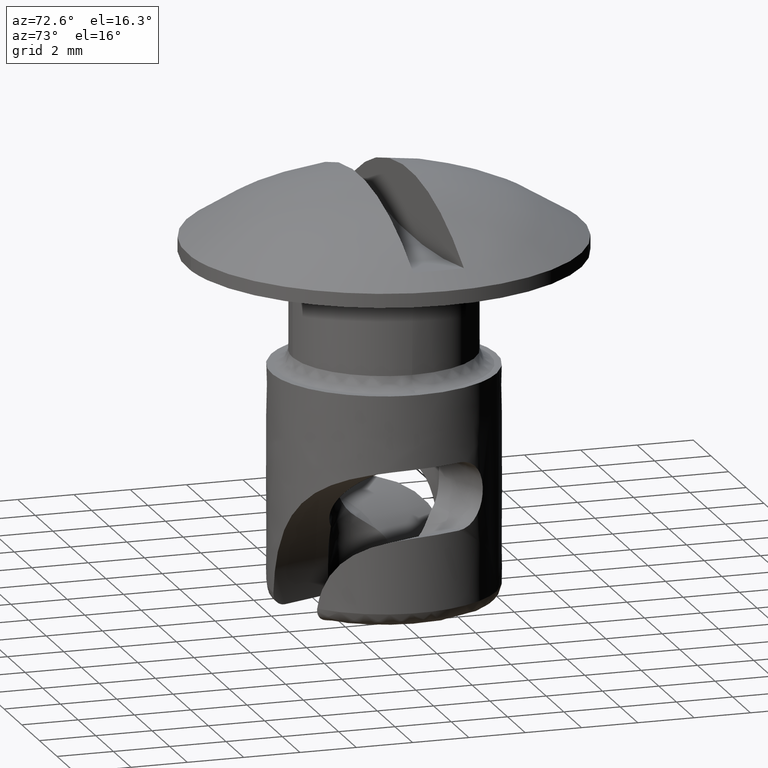
[diagram: clean part render]
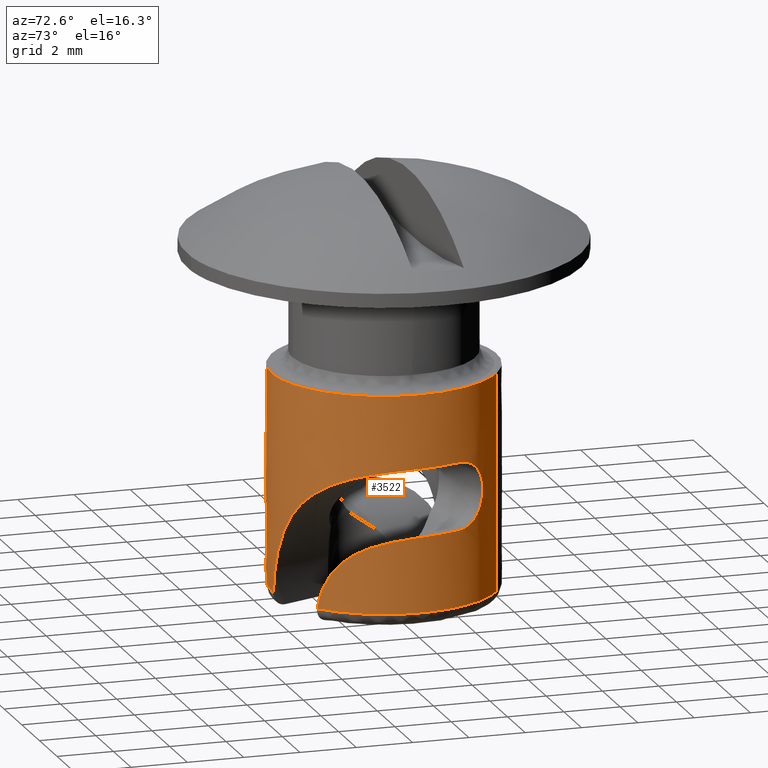
[diagram: same view with one face highlighted and labeled with its STEP entity id]
A machine part, auxiliary view. The second image highlights one B-rep face of the part: STEP entity #3522.
In plain terms, the highlighted face is a freeform B-spline surface patch.
Its self-contained STEP definition (entity closure, byte-faithful):
#891=CARTESIAN_POINT('',(4.0,0.0,-3.999992000000230));
#892=VERTEX_POINT('',#891);
#893=CARTESIAN_POINT('',(2.259197510015699,3.300912996541445,-3.999992000000230));
#894=VERTEX_POINT('',#893);
#895=CARTESIAN_POINT('',(4.0,0.0,-3.999992000000230));
#896=CARTESIAN_POINT('',(3.999999999999908,2.109480003632687,-3.999992000000229));
#897=CARTESIAN_POINT('',(2.259197510015699,3.300912996541445,-3.999992000000230));
#905=(BOUNDED_CURVE()B_SPLINE_CURVE(2,(#895,#896,#897),.UNSPECIFIED.,.F.,.U.)B_SPLINE_CURVE_WITH_KNOTS((3,3),(0.0,0.153025893260789),.UNSPECIFIED.)CURVE()GEOMETRIC_REPRESENTATION_ITEM()RATIONAL_B_SPLINE_CURVE((1.0,0.820719014244174,0.860915092408029))REPRESENTATION_ITEM(''));
#906=EDGE_CURVE('',#892,#894,#905,.T.);
#925=CARTESIAN_POINT('',(-2.259197510500350,-3.300912996209743,-3.999992000000230));
#926=VERTEX_POINT('',#925);
#940=CARTESIAN_POINT('',(-2.259197510500349,-3.300912996209743,-3.999992000000230));
#941=CARTESIAN_POINT('',(-1.237761639769162,-3.999999999999750,-3.999992000000230));
#942=CARTESIAN_POINT('',(1.431189E-013,-3.999999999999793,-3.999992000000230));
#943=CARTESIAN_POINT('',(4.000000000000049,-3.999999999999929,-3.999992000000229));
#944=CARTESIAN_POINT('',(4.0,0.0,-3.999992000000230));
#952=(BOUNDED_CURVE()B_SPLINE_CURVE(2,(#940,#941,#942,#943,#944),.UNSPECIFIED.,.F.,.U.)B_SPLINE_CURVE_WITH_KNOTS((3,2,3),(0.653025893238444,0.750000000000000,1.0),.UNSPECIFIED.)CURVE()GEOMETRIC_REPRESENTATION_ITEM()RATIONAL_B_SPLINE_CURVE((0.860915092396290,0.886387766916194,1.0,0.707106781186548,1.0))REPRESENTATION_ITEM(''));
#953=EDGE_CURVE('',#926,#892,#952,.T.);
#1437=CARTESIAN_POINT('',(3.708735643719140,1.498425815652672,-9.000000000002999));
#1438=VERTEX_POINT('',#1437);
#2209=CARTESIAN_POINT('',(2.468781606039280,-3.147239644781140,-11.699992000000160));
#2210=VERTEX_POINT('',#2209);
#2211=CARTESIAN_POINT('',(3.708735643719140,1.498425815652672,-9.000000000002999));
#2212=CARTESIAN_POINT('',(3.810090958870764,1.247562498924028,-8.999999999999957));
#2213=CARTESIAN_POINT('',(3.884534013940236,0.990773260347813,-9.001989005608994));
#2214=CARTESIAN_POINT('',(3.957431423748060,0.597114365973021,-9.010854007396773));
#2215=CARTESIAN_POINT('',(3.975219266481579,0.464472409151723,-9.014852633452975));
#2216=CARTESIAN_POINT('',(3.991888873922462,0.263341844608409,-9.023411577499735));
#2217=CARTESIAN_POINT('',(3.995774987931119,0.195736937058385,-9.026708973333692));
#2218=CARTESIAN_POINT('',(4.000098380150635,0.061185388952167,-9.034313639172039));
#2219=CARTESIAN_POINT('',(4.000552922773697,-0.005834224472924,-9.038621180587285));
#2220=CARTESIAN_POINT('',(3.994494771487647,-0.339610273644316,-9.063199871098789));
#2221=CARTESIAN_POINT('',(3.963160964590874,-0.602465402867065,-9.092231149312392));
#2222=CARTESIAN_POINT('',(3.892244392910703,-0.924545387156607,-9.151712658925305));
#2223=CARTESIAN_POINT('',(3.876463512499087,-0.988632693985070,-9.164793391147132));
#2224=CARTESIAN_POINT('',(3.841703696563867,-1.116098864420392,-9.193729502408417));
#2225=CARTESIAN_POINT('',(3.822759539488336,-1.179300871714236,-9.209558206818848));
#2226=CARTESIAN_POINT('',(3.762135803825181,-1.365026873242742,-9.261026305331658));
#2227=CARTESIAN_POINT('',(3.716439603513255,-1.484531998927814,-9.300822789177580));
#2228=CARTESIAN_POINT('',(3.616038741455109,-1.714649352695214,-9.393747744094366));
#2229=CARTESIAN_POINT('',(3.561327725681838,-1.825262215269170,-9.446867744072126));
#2230=CARTESIAN_POINT('',(3.473709976626769,-1.984187070145876,-9.538682419504859));
#2231=CARTESIAN_POINT('',(3.443778442466752,-2.035621141561653,-9.571116458527442));
#2232=CARTESIAN_POINT('',(3.383315620142914,-2.134605070561871,-9.639214097439547));
#2233=CARTESIAN_POINT('',(3.352704786899972,-2.182299978619811,-9.674960163162739));
#2234=CARTESIAN_POINT('',(3.260219866616388,-2.320176019284354,-9.787463364765014));
#2235=CARTESIAN_POINT('',(3.197691955991925,-2.405156493261604,-9.869475532748558));
#2236=CARTESIAN_POINT('',(3.104503275320067,-2.522808418043427,-10.003835034144069));
#2237=CARTESIAN_POINT('',(3.073540876573496,-2.560387302447289,-10.050513885296370));
#2238=CARTESIAN_POINT('',(3.012145538220087,-2.632340387389571,-10.147830150644310));
#2239=CARTESIAN_POINT('',(2.982023100929452,-2.666350250954837,-10.197984765034009));
#2240=CARTESIAN_POINT('',(2.894146360982896,-2.762509471872193,-10.352250067694619));
#2241=CARTESIAN_POINT('',(2.838713494502888,-2.819012463386952,-10.460418501357660));
#2242=CARTESIAN_POINT('',(2.761690907903709,-2.893846008749099,-10.630600571960381));
#2243=CARTESIAN_POINT('',(2.737037230131217,-2.917130702887333,-10.688652361414199));
#2244=CARTESIAN_POINT('',(2.690008017475718,-2.960554205342075,-10.807433704027320));
#2245=CARTESIAN_POINT('',(2.667561133932272,-2.980754471376136,-10.868388787778670));
#2246=CARTESIAN_POINT('',(2.604753430960592,-3.036178198241653,-11.053081659258231));
#2247=CARTESIAN_POINT('',(2.568768672016634,-3.066416776179763,-11.178873449431300));
#2248=CARTESIAN_POINT('',(2.509227545560912,-3.115326862492776,-11.435575624183061));
#2249=CARTESIAN_POINT('',(2.485666534758484,-3.133994640858298,-11.566485656691439));
#2250=CARTESIAN_POINT('',(2.468781606039280,-3.147239644781140,-11.699992000000160));
#2251=B_SPLINE_CURVE_WITH_KNOTS('',3,(#2211,#2212,#2213,#2214,#2215,#2216,#2217,#2218,#2219,#2220,#2221,#2222,#2223,#2224,#2225,#2226,#2227,#2228,#2229,#2230,#2231,#2232,#2233,#2234,#2235,#2236,#2237,#2238,#2239,#2240,#2241,#2242,#2243,#2244,#2245,#2246,#2247,#2248,#2249,#2250),.UNSPECIFIED.,.F.,.U.,(4,2,2,2,2,2,2,2,2,2,2,2,2,2,2,2,2,2,2,4),(0.0,0.125000000000002,0.187500000000003,0.218750000000003,0.250000000000003,0.375000000000005,0.406250000000005,0.437500000000006,0.500000000000006,0.562500000000007,0.593750000000007,0.625000000000007,0.687500000000007,0.718750000000007,0.750000000000007,0.812500000000006,0.843750000000005,0.875000000000005,0.937500000000002,1.0),.UNSPECIFIED.);
#2252=EDGE_CURVE('',#1438,#2210,#2251,.T.);
#2937=CARTESIAN_POINT('',(3.708735643717875,1.498425815653404,-6.600000000000000));
#2938=VERTEX_POINT('',#2937);
#2939=CARTESIAN_POINT('',(3.708735643719140,1.498425815652672,-9.000000000002999));
#2940=CARTESIAN_POINT('',(3.693980332764580,1.534946507632162,-8.999999999999545));
#2941=CARTESIAN_POINT('',(3.678605449735882,1.571443497108850,-8.998060004203998));
#2942=CARTESIAN_POINT('',(3.646725625274035,1.644069625472710,-8.990184061265460));
#2943=CARTESIAN_POINT('',(3.630460214853704,1.679657963704901,-8.984312736830514));
#2944=CARTESIAN_POINT('',(3.580785661125524,1.784360679842895,-8.961115904495420));
#2945=CARTESIAN_POINT('',(3.546492992665189,1.851425869439604,-8.938261317992373));
#2946=CARTESIAN_POINT('',(3.493745136881018,1.948099713255428,-8.892742532923027));
#2947=CARTESIAN_POINT('',(3.476008292158629,1.979540920869980,-8.875716160736427));
#2948=CARTESIAN_POINT('',(3.440969522412821,2.039839368769484,-8.838640247142717));
#2949=CARTESIAN_POINT('',(3.406185018755823,2.097888119400641,-8.798390899087700));
#2950=CARTESIAN_POINT('',(3.372144950699159,2.151647418722548,-8.751882076158706));
#2951=CARTESIAN_POINT('',(3.338619872972861,2.203307860198962,-8.702189254878661));
#2952=CARTESIAN_POINT('',(3.322039984462923,2.228194726983981,-8.675607884540233));
#2953=CARTESIAN_POINT('',(3.274234720697461,2.298389129948200,-8.592494346216469));
#2954=CARTESIAN_POINT('',(3.244711567903311,2.339627016936404,-8.532392079923566));
#2955=CARTESIAN_POINT('',(3.191487183096998,2.411724963050375,-8.402758036293337));
#2956=CARTESIAN_POINT('',(3.167665745887050,2.442717719060329,-8.332510609649090));
#2957=CARTESIAN_POINT('',(3.129122526322120,2.491900549370056,-8.187930240633563));
#2958=CARTESIAN_POINT('',(3.114111099204582,2.510493086913674,-8.113106655318473));
#2959=CARTESIAN_POINT('',(3.098753066007345,2.529386349564355,-7.996907638080793));
#2960=CARTESIAN_POINT('',(3.094832176459688,2.534172527735668,-7.957324867691803));
#2961=CARTESIAN_POINT('',(3.089663145777002,2.540472051885770,-7.878589447126708));
#2962=CARTESIAN_POINT('',(3.087096383195576,2.543585588401965,-7.799927749917885));
#2963=CARTESIAN_POINT('',(3.089666338298441,2.540468136988271,-7.721410773289576));
#2964=CARTESIAN_POINT('',(3.094809839269402,2.534199774254677,-7.642966707535638));
#2965=CARTESIAN_POINT('',(3.098690236980815,2.529463423918881,-7.603621911833011));
#2966=CARTESIAN_POINT('',(3.114110045358947,2.510494814966792,-7.486793612842373));
#2967=CARTESIAN_POINT('',(3.129186956931753,2.491820083517482,-7.411773137369799));
#2968=CARTESIAN_POINT('',(3.158125759642798,2.454890276847691,-7.303302705170691));
#2969=CARTESIAN_POINT('',(3.168831734382462,2.441081575336330,-7.267827589531651));
#2970=CARTESIAN_POINT('',(3.192281513021277,2.410334532777309,-7.198260596250805));
#2971=CARTESIAN_POINT('',(3.204919492123242,2.393531891863612,-7.164503663049300));
#2972=CARTESIAN_POINT('',(3.244911173185314,2.339351822899805,-7.067166908508644));
#2973=CARTESIAN_POINT('',(3.274469571402577,2.298055152406833,-7.007052296822426));
#2974=CARTESIAN_POINT('',(3.322288534992270,2.227824275993411,-6.923982773170086));
#2975=CARTESIAN_POINT('',(3.338875886487748,2.202920023704373,-6.897411074326966));
#2976=CARTESIAN_POINT('',(3.372406018221560,2.151238356032555,-6.847751460844282));
#2977=CARTESIAN_POINT('',(3.389419155863506,2.124361892889726,-6.824526641371430));
#2978=CARTESIAN_POINT('',(3.440987162825300,2.040566100235265,-6.759571072650774));
#2979=CARTESIAN_POINT('',(3.476123070176077,1.980401778936989,-6.722456112077881));
#2980=CARTESIAN_POINT('',(3.546660964345535,1.851112856905230,-6.661602071041027));
#2981=CARTESIAN_POINT('',(3.580949678573106,1.784022479467330,-6.638797553949281));
#2982=CARTESIAN_POINT('',(3.630485784679587,1.679600300423471,-6.615680313536406));
#2983=CARTESIAN_POINT('',(3.646682940823901,1.644158857251185,-6.609836626266414));
#2984=CARTESIAN_POINT('',(3.678386688849845,1.571949803924034,-6.601983981890302));
#2985=CARTESIAN_POINT('',(3.693922479155233,1.535089700403719,-6.599999999998459));
#2986=CARTESIAN_POINT('',(3.708735643717875,1.498425815653404,-6.600000000000000));
#2987=B_SPLINE_CURVE_WITH_KNOTS('',3,(#2939,#2940,#2941,#2942,#2943,#2944,#2945,#2946,#2947,#2948,#2949,#2950,#2951,#2952,#2953,#2954,#2955,#2956,#2957,#2958,#2959,#2960,#2961,#2962,#2963,#2964,#2965,#2966,#2967,#2968,#2969,#2970,#2971,#2972,#2973,#2974,#2975,#2976,#2977,#2978,#2979,#2980,#2981,#2982,#2983,#2984,#2985,#2986),.UNSPECIFIED.,.F.,.U.,(4,2,2,2,2,1,2,2,2,2,2,2,1,2,2,2,2,2,2,2,2,2,2,2,4),(0.0,0.031249999999999,0.062499999999998,0.124999999999997,0.156249999999996,0.187499999999996,0.218749999999995,0.249999999999994,0.312499999999994,0.374999999999994,0.437499999999993,0.468749999999994,0.499999999999995,0.531249999999995,0.562499999999996,0.624999999999996,0.656249999999997,0.687499999999997,0.749999999999998,0.781249999999998,0.812499999999999,0.874999999999999,0.937499999999999,0.968750000000000,1.0),.UNSPECIFIED.);
#2988=EDGE_CURVE('',#1438,#2938,#2987,.T.);
#3117=CARTESIAN_POINT('',(2.259198873092861,3.300912063629678,-11.699992000000149));
#3118=VERTEX_POINT('',#3117);
#3132=CARTESIAN_POINT('',(2.468781606039278,-3.147239644781141,-11.699992000000160));
#3133=CARTESIAN_POINT('',(4.772995447202776,-1.339750737198720,-11.699992000000158));
#3134=CARTESIAN_POINT('',(3.745950619800007,1.402802179218420,-11.699992000000160));
#3135=CARTESIAN_POINT('',(3.302552385434745,2.586823643858704,-11.699992000000163));
#3136=CARTESIAN_POINT('',(2.259198873092861,3.300912063629680,-11.699992000000162));
#3144=(BOUNDED_CURVE()B_SPLINE_CURVE(2,(#3132,#3133,#3134,#3135,#3136),.UNSPECIFIED.,.F.,.U.)B_SPLINE_CURVE_WITH_KNOTS((3,2,3),(0.0,0.500000000000000,0.742473772088481),.UNSPECIFIED.)CURVE()GEOMETRIC_REPRESENTATION_ITEM()RATIONAL_B_SPLINE_CURVE((1.0,0.806864675671207,1.0,0.906339498772931,0.903519857658763))REPRESENTATION_ITEM(''));
#3145=EDGE_CURVE('',#2210,#3118,#3144,.T.);
#3412=CARTESIAN_POINT('',(-2.259198850649106,-3.300912078990555,-11.892492000000161));
#3413=CARTESIAN_POINT('',(1.041713228341449,-5.560110929639662,-11.892492000000159));
#3414=CARTESIAN_POINT('',(3.300912078990555,-2.259198850649106,-11.892492000000161));
#3415=CARTESIAN_POINT('',(5.560110929639662,1.041713228341449,-11.892492000000159));
#3416=CARTESIAN_POINT('',(2.259198850649106,3.300912078990555,-11.892492000000161));
#3417=CARTESIAN_POINT('',(-2.259198850649106,-3.300912078990555,-3.802679500000232));
#3418=CARTESIAN_POINT('',(1.041713228341449,-5.560110929639662,-3.802679500000232));
#3419=CARTESIAN_POINT('',(3.300912078990555,-2.259198850649106,-3.802679500000232));
#3420=CARTESIAN_POINT('',(5.560110929639662,1.041713228341449,-3.802679500000232));
#3421=CARTESIAN_POINT('',(2.259198850649106,3.300912078990555,-3.802679500000232));
#3429=(BOUNDED_SURFACE()B_SPLINE_SURFACE(2,1,((#3412,#3417),(#3413,#3418),(#3414,#3419),(#3415,#3420),(#3416,#3421)),.UNSPECIFIED.,.F.,.F.,.U.)B_SPLINE_SURFACE_WITH_KNOTS((3,2,3),(2,2),(0.0,6.627416997969519,13.254833995939039),(0.0,8.089812499999926),.UNSPECIFIED.)GEOMETRIC_REPRESENTATION_ITEM()RATIONAL_B_SPLINE_SURFACE(((1.0,1.0),(0.707106781186548,0.707106781186548),(1.0,1.0),(0.707106781186548,0.707106781186548),(1.0,1.0)))REPRESENTATION_ITEM('')SURFACE());
#3430=ORIENTED_EDGE('',*,*,#953,.F.);
#3431=CARTESIAN_POINT('',(-2.259198889442652,-3.300912052439610,-11.699992000000160));
#3432=VERTEX_POINT('',#3431);
#3433=CARTESIAN_POINT('',(-2.259198889442652,-3.300912052439610,-11.699992000000160));
#3434=CARTESIAN_POINT('',(-2.259197510500350,-3.300912996209743,-3.999992000000230));
#3435=QUASI_UNIFORM_CURVE('',1,(#3433,#3434),.UNSPECIFIED.,.F.,.U.);
#3436=EDGE_CURVE('',#3432,#926,#3435,.T.);
#3437=ORIENTED_EDGE('',*,*,#3436,.F.);
#3438=CARTESIAN_POINT('',(0.205768854712658,-3.994703891207740,-11.699992000000160));
#3439=VERTEX_POINT('',#3438);
#3440=CARTESIAN_POINT('',(-2.259198889442653,-3.300912052439611,-11.699992000000162));
#3441=CARTESIAN_POINT('',(-1.143920645850058,-4.064226957325293,-11.699992000000162));
#3442=CARTESIAN_POINT('',(0.205768854712658,-3.994703891207737,-11.699992000000160));
#3450=(BOUNDED_CURVE()B_SPLINE_CURVE(2,(#3440,#3441,#3442),.UNSPECIFIED.,.F.,.U.)B_SPLINE_CURVE_WITH_KNOTS((3,3),(0.742473770194558,1.0),.UNSPECIFIED.)CURVE()GEOMETRIC_REPRESENTATION_ITEM()RATIONAL_B_SPLINE_CURVE((0.903519857702811,0.900525176166710,1.0))REPRESENTATION_ITEM(''));
#3451=EDGE_CURVE('',#3432,#3439,#3450,.T.);
#3452=ORIENTED_EDGE('',*,*,#3451,.T.);
#3453=CARTESIAN_POINT('',(3.708735643717875,1.498425815653404,-6.600000000000000));
#3454=CARTESIAN_POINT('',(3.789816242015302,1.297744205807735,-6.599999999999972));
#3455=CARTESIAN_POINT('',(3.853610974872032,1.093263577412488,-6.600772875729547));
#3456=CARTESIAN_POINT('',(3.948059474699817,0.677029674079291,-6.604736595366663));
#3457=CARTESIAN_POINT('',(3.978711172169415,0.465275843627494,-6.607918917681143));
#3458=CARTESIAN_POINT('',(3.995564957132693,0.195894578718415,-6.615217662911021));
#3459=CARTESIAN_POINT('',(3.997848564085063,0.141795779559010,-6.616849857873357));
#3460=CARTESIAN_POINT('',(4.000216753743071,0.034133671513432,-6.620487619688186));
#3461=CARTESIAN_POINT('',(4.000310720402404,-0.019555583718766,-6.622496360478703));
#3462=CARTESIAN_POINT('',(3.997374375231632,-0.180197743397611,-6.629181404475866));
#3463=CARTESIAN_POINT('',(3.991130562209951,-0.286725832207316,-6.634513265878185));
#3464=CARTESIAN_POINT('',(3.959775703180690,-0.604579068728949,-6.653959452422089));
#3465=CARTESIAN_POINT('',(3.922112906822729,-0.814186815777882,-6.671451332132993));
#3466=CARTESIAN_POINT('',(3.853761044358152,-1.073029672022521,-6.702641931695323));
#3467=CARTESIAN_POINT('',(3.838978122430331,-1.124771750286358,-6.709371911327247));
#3468=CARTESIAN_POINT('',(3.807509609817084,-1.227083976707175,-6.723770845920252));
#3469=CARTESIAN_POINT('',(3.757456182568842,-1.378856449089958,-6.746776668644611));
#3470=CARTESIAN_POINT('',(3.699122988859857,-1.525589463259218,-6.774337358302793));
#3471=CARTESIAN_POINT('',(3.571982284881070,-1.812368324864488,-6.836501287930684));
#3472=CARTESIAN_POINT('',(3.473289894623776,-1.994666556306956,-6.887282724575035));
#3473=CARTESIAN_POINT('',(3.333735905731934,-2.211076038045203,-6.966273291350480));
#3474=CARTESIAN_POINT('',(3.304936856167118,-2.253889410775153,-6.982896306513404));
#3475=CARTESIAN_POINT('',(3.246122206245276,-2.337801471763046,-7.017586295371046));
#3476=CARTESIAN_POINT('',(3.156252307149328,-2.460874529570282,-7.071677189101810));
#3477=CARTESIAN_POINT('',(3.061826482051081,-2.575801728123305,-7.132117061349231));
#3478=CARTESIAN_POINT('',(2.867818098297072,-2.795310921927874,-7.261970828628705));
#3479=CARTESIAN_POINT('',(2.731615405252651,-2.927880516877459,-7.360484840940162));
#3480=CARTESIAN_POINT('',(2.555468277276900,-3.077615931860112,-7.500482646460062));
#3481=CARTESIAN_POINT('',(2.519980797999551,-3.106724907485755,-7.529300169703665));
#3482=CARTESIAN_POINT('',(2.449137228549458,-3.162873647304285,-7.588113109815472));
#3483=CARTESIAN_POINT('',(2.342830668632972,-3.244196303757055,-7.678286934049607));
#3484=CARTESIAN_POINT('',(2.236691472767791,-3.317262990057822,-7.774323978974890));
#3485=CARTESIAN_POINT('',(2.095796109974274,-3.408028925196530,-7.907615685544692));
#3486=CARTESIAN_POINT('',(2.025659446669301,-3.450082715466894,-7.976882592651817));
#3487=CARTESIAN_POINT('',(1.921257087853518,-3.508612679782934,-8.084763703480403));
#3488=CARTESIAN_POINT('',(1.886589940101576,-3.527363601466302,-8.121387812844379));
#3489=CARTESIAN_POINT('',(1.817578161753506,-3.563414823586853,-8.195975244005737));
#3490=CARTESIAN_POINT('',(1.783169554541134,-3.580745444036076,-8.234012034142026));
#3491=CARTESIAN_POINT('',(1.613033766418871,-3.663472067865985,-8.426479837185488));
#3492=CARTESIAN_POINT('',(1.482986987825050,-3.717243031302735,-8.587707480761205));
#3493=CARTESIAN_POINT('',(1.236698357886628,-3.806274206021904,-8.924298447189081));
#3494=CARTESIAN_POINT('',(1.120446684108451,-3.841502833200431,-9.099662647876054));
#3495=CARTESIAN_POINT('',(0.957908198356718,-3.884011853853578,-9.373477761067985));
#3496=CARTESIAN_POINT('',(0.905705251657002,-3.896450403323479,-9.466548770707387));
#3497=CARTESIAN_POINT('',(0.805555123776748,-3.918380876203309,-9.656374165562108));
#3498=CARTESIAN_POINT('',(0.757944234396752,-3.927799075888549,-9.752505848182304));
#3499=CARTESIAN_POINT('',(0.623151315216673,-3.952217429541131,-10.043543537596660));
#3500=CARTESIAN_POINT('',(0.543759445167943,-3.963466434363899,-10.241513917056279));
#3501=CARTESIAN_POINT('',(0.407032704488645,-3.979832268829340,-10.645542024260850));
#3502=CARTESIAN_POINT('',(0.349696208037412,-3.984944904570065,-10.851599389006870));
#3503=CARTESIAN_POINT('',(0.281593372982556,-3.990140787602110,-11.167123652098400));
#3504=CARTESIAN_POINT('',(0.261884957381903,-3.991451814718027,-11.273468557289331));
#3505=CARTESIAN_POINT('',(0.229003439772380,-3.993473268308075,-11.486270620101600));
#3506=CARTESIAN_POINT('',(0.215769063158924,-3.994188776321904,-11.592977385333411));
#3507=CARTESIAN_POINT('',(0.205768854712658,-3.994703891207740,-11.699992000000160));
#3508=B_SPLINE_CURVE_WITH_KNOTS('',3,(#3453,#3454,#3455,#3456,#3457,#3458,#3459,#3460,#3461,#3462,#3463,#3464,#3465,#3466,#3467,#3468,#3469,#3470,#3471,#3472,#3473,#3474,#3475,#3476,#3477,#3478,#3479,#3480,#3481,#3482,#3483,#3484,#3485,#3486,#3487,#3488,#3489,#3490,#3491,#3492,#3493,#3494,#3495,#3496,#3497,#3498,#3499,#3500,#3501,#3502,#3503,#3504,#3505,#3506,#3507),.UNSPECIFIED.,.F.,.U.,(4,2,2,2,2,2,2,2,1,2,2,2,1,2,2,2,1,2,2,2,2,2,2,2,2,2,2,2,4),(0.0,0.062500000000000,0.125000000000000,0.140625000000000,0.156250000000000,0.187500000000000,0.249999999999999,0.265624999999999,0.281249999999999,0.312499999999999,0.374999999999999,0.390624999999999,0.406249999999998,0.437499999999998,0.499999999999998,0.515624999999998,0.531249999999998,0.562499999999998,0.593749999999999,0.609374999999999,0.624999999999999,0.687499999999999,0.749999999999999,0.781249999999999,0.812499999999999,0.875000000000000,0.937500000000000,0.968750000000000,1.0),.UNSPECIFIED.);
#3509=EDGE_CURVE('',#2938,#3439,#3508,.T.);
#3510=ORIENTED_EDGE('',*,*,#3509,.F.);
#3511=ORIENTED_EDGE('',*,*,#2988,.F.);
#3512=ORIENTED_EDGE('',*,*,#2252,.T.);
#3513=ORIENTED_EDGE('',*,*,#3145,.T.);
#3514=CARTESIAN_POINT('',(2.259198873092861,3.300912063629678,-11.699992000000149));
#3515=CARTESIAN_POINT('',(2.259197510015699,3.300912996541445,-3.999992000000230));
#3516=QUASI_UNIFORM_CURVE('',1,(#3514,#3515),.UNSPECIFIED.,.F.,.U.);
#3517=EDGE_CURVE('',#3118,#894,#3516,.T.);
#3518=ORIENTED_EDGE('',*,*,#3517,.T.);
#3519=ORIENTED_EDGE('',*,*,#906,.F.);
#3520=EDGE_LOOP('',(#3430,#3437,#3452,#3510,#3511,#3512,#3513,#3518,#3519));
#3521=FACE_OUTER_BOUND('',#3520,.T.);
#3522=ADVANCED_FACE('',(#3521),#3429,.T.);